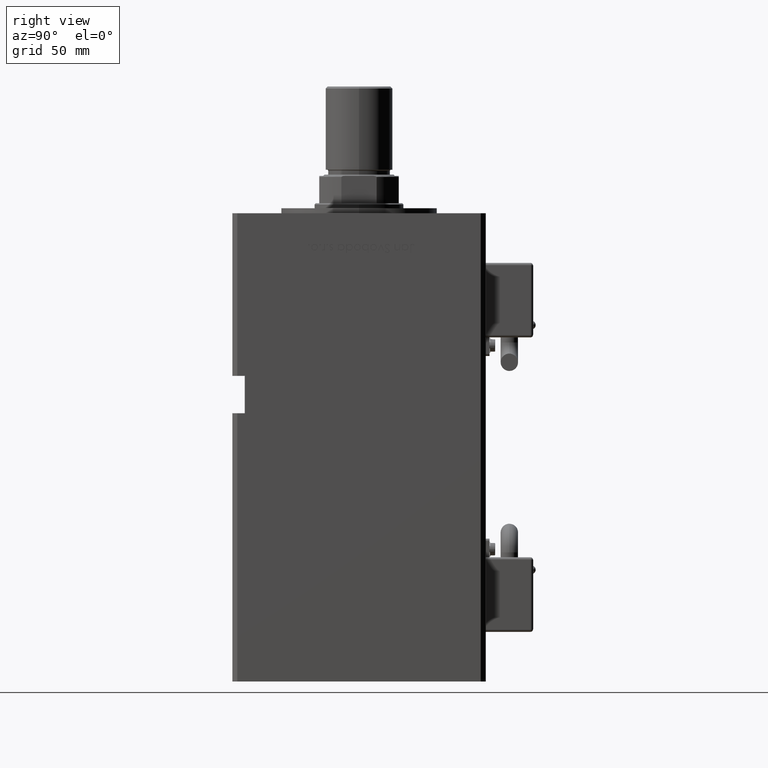
[diagram: clean part render]
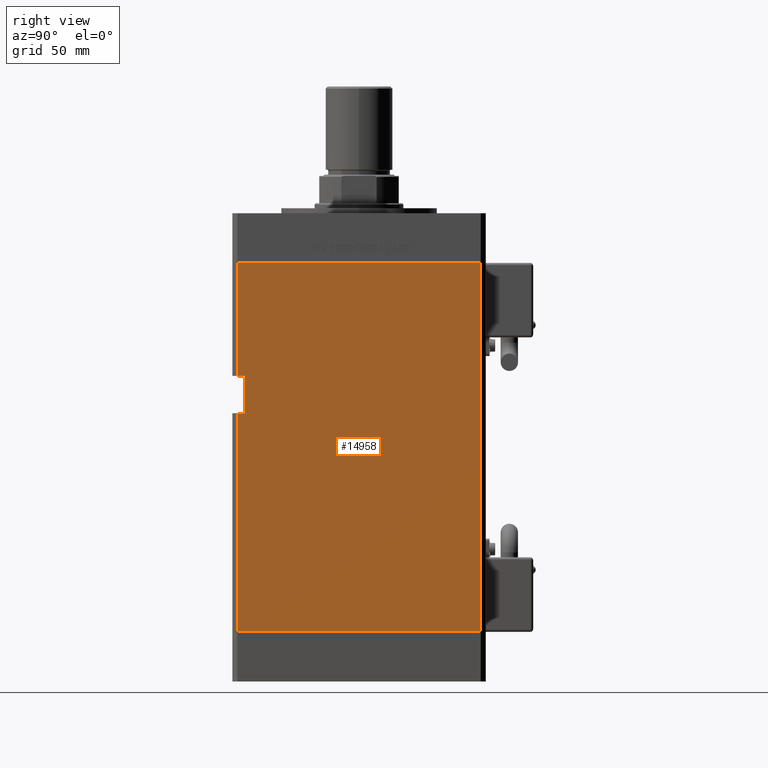
[diagram: same view with one face highlighted and labeled with its STEP entity id]
A machine part, right view. The second image highlights one B-rep face of the part: STEP entity #14958.
In plain terms, the highlighted planar face has unit normal (1, -0, 0).
Its self-contained STEP definition (entity closure, byte-faithful):
#374 = EDGE_CURVE ( 'NONE', #40423, #11914, #25454, .T. ) ;
#1431 = DIRECTION ( 'NONE',  ( -2.832201593431522219E-16, -1.000000000000000000, 0.000000000000000000 ) ) ;
#2981 = DIRECTION ( 'NONE',  ( 2.832201593431522219E-16, 1.000000000000000000, 0.000000000000000000 ) ) ;
#4854 = CARTESIAN_POINT ( 'NONE',  ( 60.00000000000001421, 49.00000000000000000, 148.5000000000000000 ) ) ;
#6158 = ORIENTED_EDGE ( 'NONE', *, *, #11184, .F. ) ;
#6537 = DIRECTION ( 'NONE',  ( -0.000000000000000000, -0.000000000000000000, -1.000000000000000000 ) ) ;
#7840 = DIRECTION ( 'NONE',  ( 1.000000000000000000, -2.832201593431522219E-16, 0.000000000000000000 ) ) ;
#7847 = DIRECTION ( 'NONE',  ( -0.000000000000000000, -0.000000000000000000, 1.000000000000000000 ) ) ;
#7873 = ORIENTED_EDGE ( 'NONE', *, *, #374, .T. ) ;
#8263 = EDGE_CURVE ( 'NONE', #39514, #18705, #32634, .T. ) ;
#8672 = DIRECTION ( 'NONE',  ( -0.000000000000000000, -1.000000000000000000, -0.000000000000000000 ) ) ;
#9497 = CARTESIAN_POINT ( 'NONE',  ( 60.00000000000001421, 49.00000000000000000, 0.000000000000000000 ) ) ;
#10308 = LINE ( 'NONE', #32390, #23928 ) ;
#11184 = EDGE_CURVE ( 'NONE', #18705, #11914, #10308, .T. ) ;
#11914 = VERTEX_POINT ( 'NONE', #56029 ) ;
#12489 = ORIENTED_EDGE ( 'NONE', *, *, #18874, .T. ) ;
#13015 = CARTESIAN_POINT ( 'NONE',  ( 59.99999999999998579, -45.99999999999999289, 103.0000000000000000 ) ) ;
#14595 = VERTEX_POINT ( 'NONE', #16797 ) ;
#14743 = ORIENTED_EDGE ( 'NONE', *, *, #48565, .T. ) ;
#14958 = ADVANCED_FACE ( 'NONE', ( #25058 ), #37388, .T. ) ;
#15856 = EDGE_CURVE ( 'NONE', #14595, #31505, #46882, .T. ) ;
#16416 = ORIENTED_EDGE ( 'NONE', *, *, #24539, .F. ) ;
#16797 = CARTESIAN_POINT ( 'NONE',  ( 59.99999999999998579, -46.00000000000000000, 88.00000000000000000 ) ) ;
#17047 = VERTEX_POINT ( 'NONE', #27446 ) ;
#18705 = VERTEX_POINT ( 'NONE', #9497 ) ;
#18874 = EDGE_CURVE ( 'NONE', #39514, #17047, #34408, .T. ) ;
#19422 = CARTESIAN_POINT ( 'NONE',  ( 59.99999999999998579, -48.99999999999998579, 103.0000000000000000 ) ) ;
#23928 = VECTOR ( 'NONE', #1431, 1000.000000000000000 ) ;
#24539 = EDGE_CURVE ( 'NONE', #31505, #40497, #36656, .T. ) ;
#25058 = FACE_OUTER_BOUND ( 'NONE', #55144, .T. ) ;
#25454 = LINE ( 'NONE', #34067, #31005 ) ;
#27446 = CARTESIAN_POINT ( 'NONE',  ( 59.99999999999998579, -48.99999999999998579, 148.5000000000000000 ) ) ;
#28612 = CARTESIAN_POINT ( 'NONE',  ( 60.00000000000001421, 49.00000000000000000, 148.5000000000000000 ) ) ;
#28618 = CARTESIAN_POINT ( 'NONE',  ( 59.99999999999998579, -45.99999999999999289, 103.0000000000000000 ) ) ;
#28670 = VECTOR ( 'NONE', #7847, 1000.000000000000000 ) ;
#31005 = VECTOR ( 'NONE', #47838, 1000.000000000000000 ) ;
#31008 = CARTESIAN_POINT ( 'NONE',  ( 59.99999999999998579, -45.99999999999999289, 88.00000000000000000 ) ) ;
#31505 = VERTEX_POINT ( 'NONE', #13015 ) ;
#32286 = AXIS2_PLACEMENT_3D ( 'NONE', #46021, #7840, #2981 ) ;
#32390 = CARTESIAN_POINT ( 'NONE',  ( 60.00000000000001421, 49.00000000000000000, 0.000000000000000000 ) ) ;
#32444 = VECTOR ( 'NONE', #51918, 1000.000000000000000 ) ;
#32634 = LINE ( 'NONE', #28612, #50566 ) ;
#32639 = DIRECTION ( 'NONE',  ( -0.000000000000000000, -1.000000000000000000, -0.000000000000000000 ) ) ;
#34067 = CARTESIAN_POINT ( 'NONE',  ( 59.99999999999998579, -48.99999999999998579, 148.5000000000000000 ) ) ;
#34235 = CARTESIAN_POINT ( 'NONE',  ( 59.99999999999998579, -45.99999999999999289, 103.0000000000000000 ) ) ;
#34408 = LINE ( 'NONE', #4854, #32444 ) ;
#35056 = LINE ( 'NONE', #31008, #55556 ) ;
#35094 = VECTOR ( 'NONE', #39977, 1000.000000000000000 ) ;
#35331 = ORIENTED_EDGE ( 'NONE', *, *, #8263, .F. ) ;
#36090 = CARTESIAN_POINT ( 'NONE',  ( 59.99999999999998579, -48.99999999999998579, 88.00000000000000000 ) ) ;
#36656 = LINE ( 'NONE', #28618, #46708 ) ;
#37036 = EDGE_CURVE ( 'NONE', #17047, #40497, #53727, .T. ) ;
#37388 = PLANE ( 'NONE',  #32286 ) ;
#39514 = VERTEX_POINT ( 'NONE', #49946 ) ;
#39977 = DIRECTION ( 'NONE',  ( -0.000000000000000000, -0.000000000000000000, -1.000000000000000000 ) ) ;
#40423 = VERTEX_POINT ( 'NONE', #36090 ) ;
#40497 = VERTEX_POINT ( 'NONE', #19422 ) ;
#41719 = ORIENTED_EDGE ( 'NONE', *, *, #15856, .F. ) ;
#46021 = CARTESIAN_POINT ( 'NONE',  ( 60.00000000000001421, 49.00000000000000000, 148.5000000000000000 ) ) ;
#46708 = VECTOR ( 'NONE', #32639, 1000.000000000000000 ) ;
#46882 = LINE ( 'NONE', #34235, #28670 ) ;
#47838 = DIRECTION ( 'NONE',  ( -0.000000000000000000, -0.000000000000000000, -1.000000000000000000 ) ) ;
#48061 = ORIENTED_EDGE ( 'NONE', *, *, #37036, .T. ) ;
#48565 = EDGE_CURVE ( 'NONE', #14595, #40423, #35056, .T. ) ;
#48587 = CARTESIAN_POINT ( 'NONE',  ( 59.99999999999998579, -48.99999999999998579, 148.5000000000000000 ) ) ;
#49946 = CARTESIAN_POINT ( 'NONE',  ( 60.00000000000001421, 49.00000000000000000, 148.5000000000000000 ) ) ;
#50566 = VECTOR ( 'NONE', #6537, 1000.000000000000000 ) ;
#51918 = DIRECTION ( 'NONE',  ( -2.832201593431522219E-16, -1.000000000000000000, 0.000000000000000000 ) ) ;
#53727 = LINE ( 'NONE', #48587, #35094 ) ;
#55144 = EDGE_LOOP ( 'NONE', ( #14743, #7873, #6158, #35331, #12489, #48061, #16416, #41719 ) ) ;
#55556 = VECTOR ( 'NONE', #8672, 1000.000000000000000 ) ;
#56029 = CARTESIAN_POINT ( 'NONE',  ( 59.99999999999998579, -48.99999999999998579, 0.000000000000000000 ) ) ;